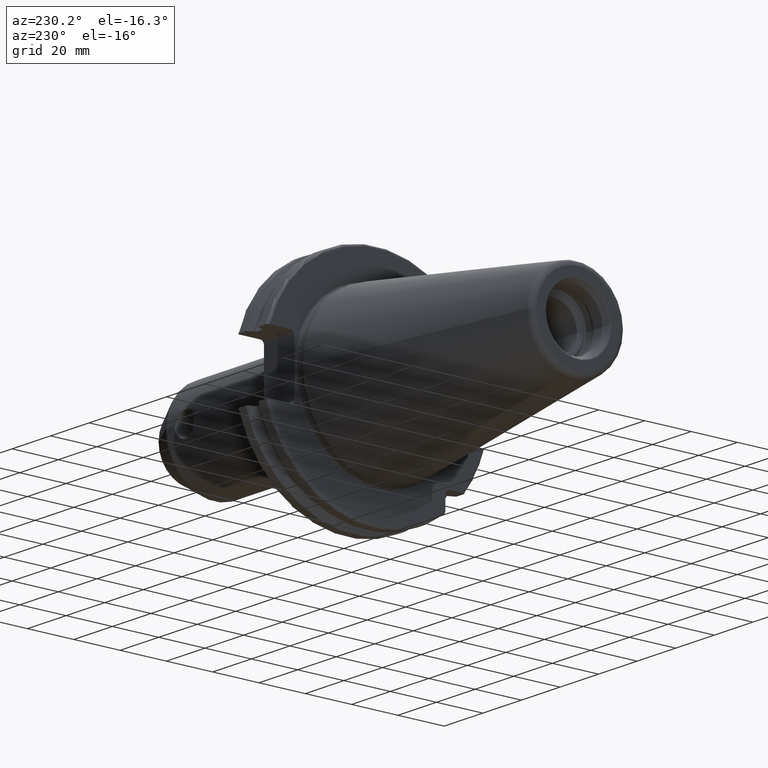
[diagram: clean part render]
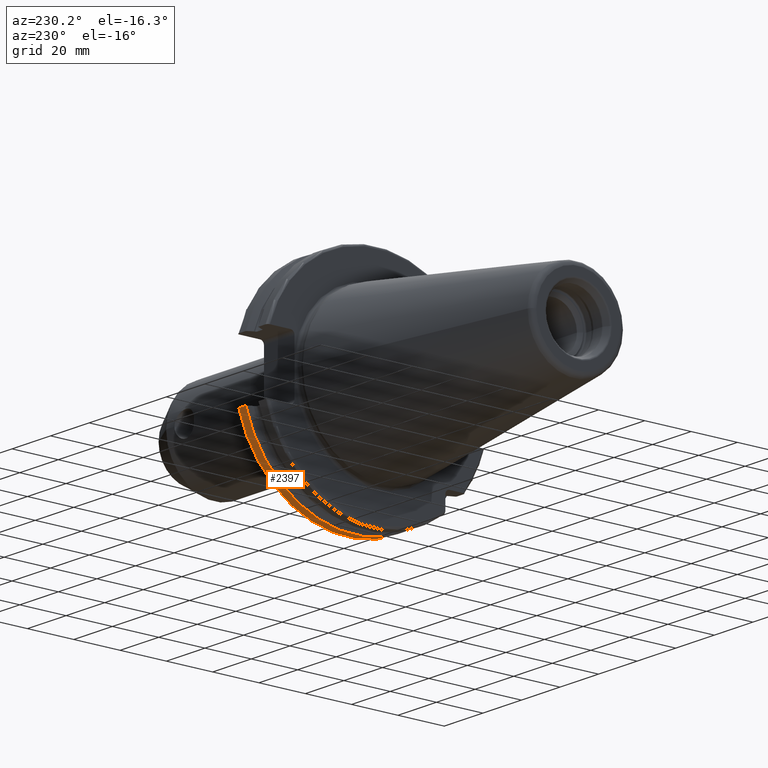
[diagram: same view with one face highlighted and labeled with its STEP entity id]
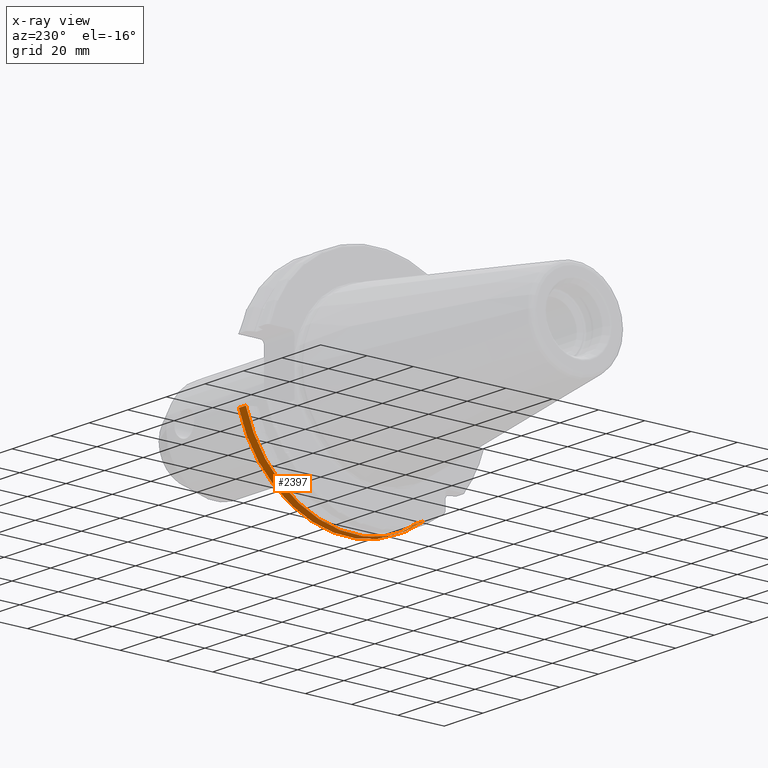
[diagram: x-ray of the same camera — body ghosted, the highlighted face saturated]
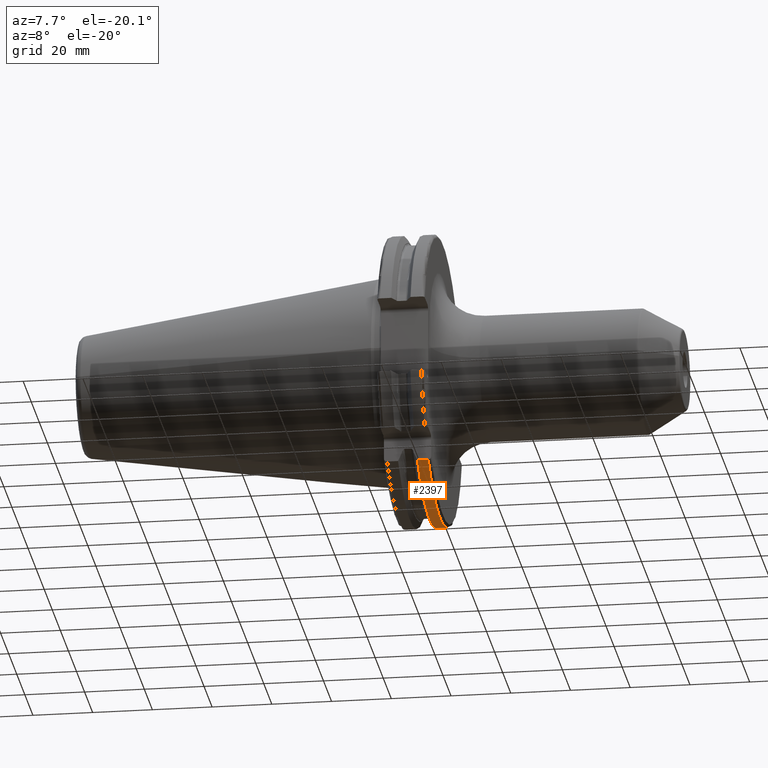
[diagram: same view with one face highlighted and labeled with its STEP entity id]
A machine part, auxiliary view. The second image highlights one B-rep face of the part: STEP entity #2397.
The next image is the same camera in x-ray: the body ghosted, the highlighted face saturated — about 0% of this face is hidden behind the body in this view.
A second angle (auxiliary view) of the same face is appended — the face is thin or edge-on in the first view.
In plain terms, the highlighted cylindrical surface (partial cylindrical patch) has radius 48.7375 mm, axis along (1, 0, 0).
Its self-contained STEP definition (entity closure, byte-faithful):
#598=DIRECTION('',(1.E0,0.E0,0.E0));
#599=VECTOR('',#598,3.634621614173E0);
#600=CARTESIAN_POINT('',(1.441537838583E1,4.699929686974E1,-1.29E1));
#601=LINE('',#600,#599);
#602=CARTESIAN_POINT('',(1.441537838583E1,0.E0,0.E0));
#603=DIRECTION('',(1.E0,0.E0,0.E0));
#604=DIRECTION('',(0.E0,-6.124647345473E-1,-7.904979120376E-1));
#605=AXIS2_PLACEMENT_3D('',#602,#603,#604);
#607=DIRECTION('',(1.E0,0.E0,0.E0));
#608=VECTOR('',#607,3.634621614173E0);
#609=CARTESIAN_POINT('',(1.441537838583E1,-2.985E1,-3.852689198793E1));
#610=LINE('',#609,#608);
#611=CARTESIAN_POINT('',(1.805E1,0.E0,0.E0));
#612=DIRECTION('',(-1.E0,0.E0,0.E0));
#613=DIRECTION('',(0.E0,9.643354064066E-1,-2.646832521159E-1));
#614=AXIS2_PLACEMENT_3D('',#611,#612,#613);
#1162=CARTESIAN_POINT('',(1.441537838583E1,4.699929686974E1,-1.29E1));
#1174=CARTESIAN_POINT('',(1.441537838583E1,-2.985E1,-3.852689198793E1));
#1535=VERTEX_POINT('',#1162);
#1549=CARTESIAN_POINT('',(1.805E1,4.699929686974E1,-1.29E1));
#1550=VERTEX_POINT('',#1549);
#1584=CARTESIAN_POINT('',(1.805E1,-2.985E1,-3.852689198793E1));
#1585=VERTEX_POINT('',#1584);
#1684=VERTEX_POINT('',#1174);
#2384=CARTESIAN_POINT('',(-1.076325E2,0.E0,0.E0));
#2385=DIRECTION('',(1.E0,0.E0,0.E0));
#2386=DIRECTION('',(0.E0,-1.E0,0.E0));
#2387=AXIS2_PLACEMENT_3D('',#2384,#2385,#2386);
#2388=CYLINDRICAL_SURFACE('',#2387,4.87375E1);
#2389=ORIENTED_EDGE('',*,*,#2186,.F.);
#2391=ORIENTED_EDGE('',*,*,#2390,.F.);
#2393=ORIENTED_EDGE('',*,*,#2392,.T.);
#2394=ORIENTED_EDGE('',*,*,#2347,.F.);
#2395=EDGE_LOOP('',(#2389,#2391,#2393,#2394));
#2396=FACE_OUTER_BOUND('',#2395,.F.);
#2397=ADVANCED_FACE('',(#2396),#2388,.T.);
#606=CIRCLE('',#605,4.87375E1);
#615=CIRCLE('',#614,4.87375E1);
#2186=EDGE_CURVE('',#1535,#1550,#601,.T.);
#2347=EDGE_CURVE('',#1550,#1585,#615,.T.);
#2390=EDGE_CURVE('',#1684,#1535,#606,.T.);
#2392=EDGE_CURVE('',#1684,#1585,#610,.T.);